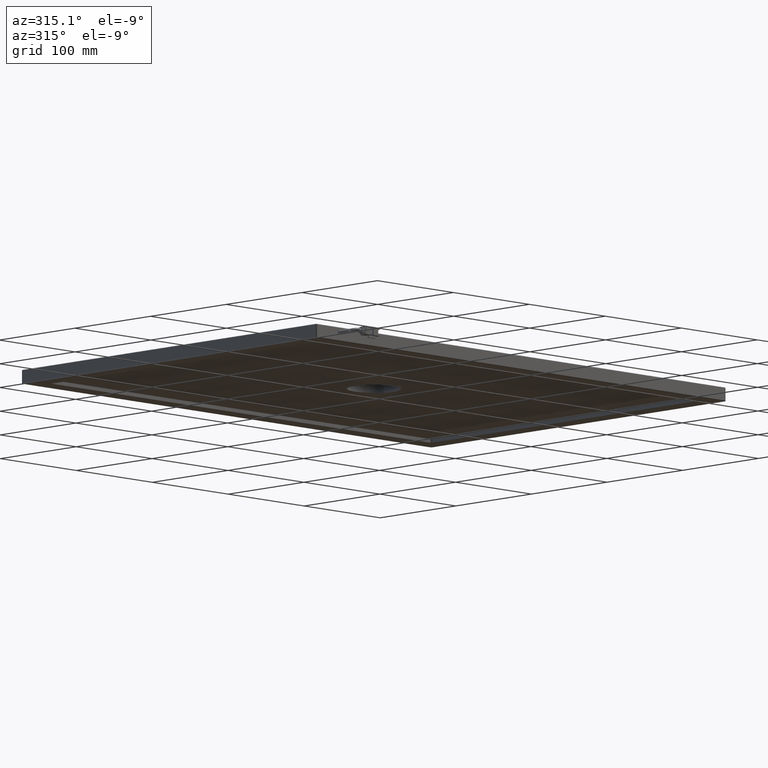
[diagram: clean part render]
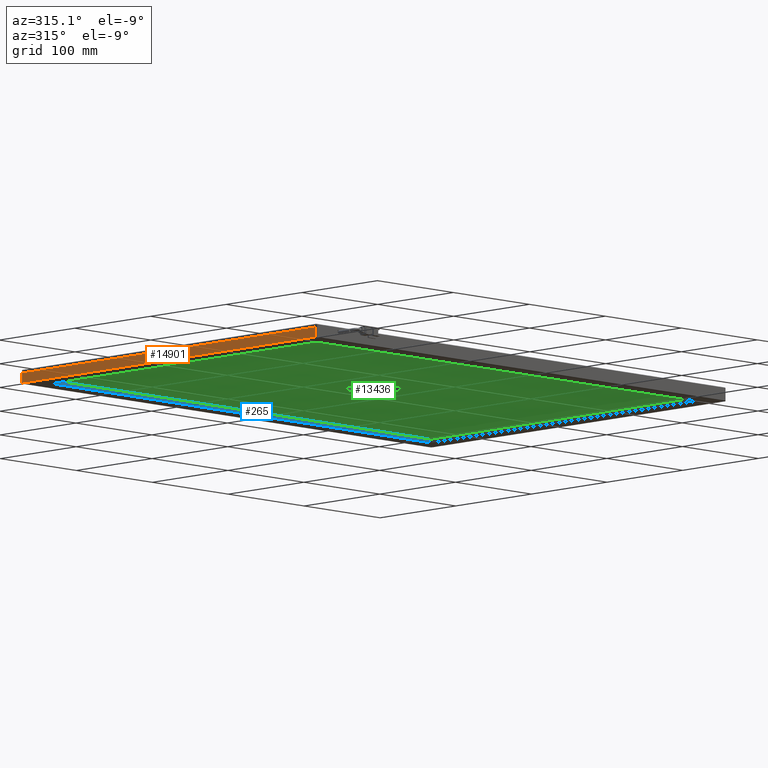
[diagram: same view with three faces highlighted in distinct colors, each labeled with its STEP entity id]
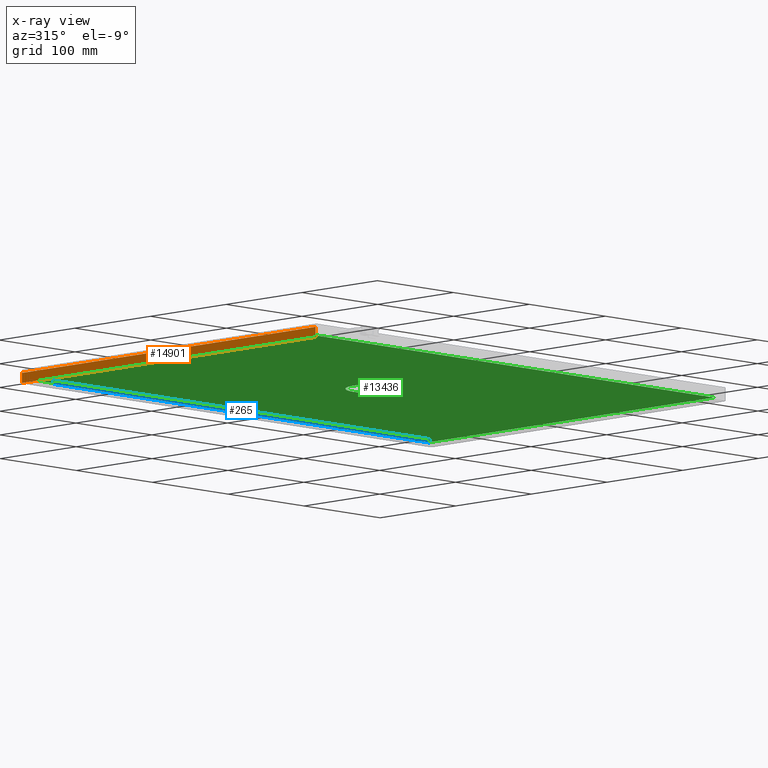
[diagram: x-ray of the same camera — body ghosted, the three highlighted faces saturated]
A machine part, auxiliary view with three faces highlighted in distinct colors.
The next image is the same camera in x-ray (body ghosted, the three faces saturated) — at least one of them is partly hidden behind the body in this view.
Their STEP definitions:

[orange] entity #14901 — the highlighted planar face has unit normal (1, 0, -0).
#1769 = VECTOR ( 'NONE', #4549, 1000.000000000000000 ) ;
#2458 = AXIS2_PLACEMENT_3D ( 'NONE', #19940, #33398, #33260 ) ;
#4338 = CARTESIAN_POINT ( 'NONE',  ( -256.0590440487346800, 215.7122774133083900, 10.00000000001909900 ) ) ;
#4549 = DIRECTION ( 'NONE',  ( 0.0000000000000000000, 0.0000000000000000000, 1.000000000000000000 ) ) ;
#6394 = DIRECTION ( 'NONE',  ( -0.0000000000000000000, -0.0000000000000000000, -1.000000000000000000 ) ) ;
#6777 = VERTEX_POINT ( 'NONE', #21624 ) ;
#9005 = CARTESIAN_POINT ( 'NONE',  ( -256.0590440487347900, 214.7122774133083300, 10.00000000001909900 ) ) ;
#11819 = VECTOR ( 'NONE', #6394, 1000.000000000000000 ) ;
#12496 = DIRECTION ( 'NONE',  ( -1.423362852083447600E-016, 1.000000000000000000, -1.423362852083534100E-016 ) ) ;
#14093 = ORIENTED_EDGE ( 'NONE', *, *, #31422, .T. ) ;
#14901 = ADVANCED_FACE ( 'NONE', ( #24140 ), #16755, .F. ) ;
#15310 = ORIENTED_EDGE ( 'NONE', *, *, #40515, .F. ) ;
#15327 = EDGE_CURVE ( 'NONE', #6777, #33827, #27261, .T. ) ;
#16755 = PLANE ( 'NONE',  #2458 ) ;
#16959 = VERTEX_POINT ( 'NONE', #30841 ) ;
#17988 = VECTOR ( 'NONE', #12496, 1000.000000000000000 ) ;
#19940 = CARTESIAN_POINT ( 'NONE',  ( -256.0590440487346800, -174.2877225866916100, 10.00000000001909900 ) ) ;
#20546 = CARTESIAN_POINT ( 'NONE',  ( -256.0590440487346800, -173.2877225866917300, 0.5000000000189271900 ) ) ;
#20967 = ORIENTED_EDGE ( 'NONE', *, *, #15327, .F. ) ;
#21624 = CARTESIAN_POINT ( 'NONE',  ( -256.0590440487346800, -173.2877225866917300, 10.00000000001909900 ) ) ;
#23187 = EDGE_CURVE ( 'NONE', #33827, #16959, #37532, .T. ) ;
#24140 = FACE_OUTER_BOUND ( 'NONE', #33282, .T. ) ;
#24501 = CARTESIAN_POINT ( 'NONE',  ( -256.0590440487347900, 214.7122774133083300, 10.00000000001909900 ) ) ;
#26357 = LINE ( 'NONE', #24501, #1769 ) ;
#27261 = LINE ( 'NONE', #29387, #11819 ) ;
#27971 = ORIENTED_EDGE ( 'NONE', *, *, #23187, .F. ) ;
#29387 = CARTESIAN_POINT ( 'NONE',  ( -256.0590440487346800, -173.2877225866917300, 10.00000000001909900 ) ) ;
#30841 = CARTESIAN_POINT ( 'NONE',  ( -256.0590440487347900, 214.7122774133082700, 0.5000000000189261900 ) ) ;
#31422 = EDGE_CURVE ( 'NONE', #6777, #40147, #36098, .T. ) ;
#33260 = DIRECTION ( 'NONE',  ( -2.846725704167067800E-016, 1.000000000000000000, 0.0000000000000000000 ) ) ;
#33282 = EDGE_LOOP ( 'NONE', ( #27971, #20967, #14093, #15310 ) ) ;
#33398 = DIRECTION ( 'NONE',  ( 1.000000000000000000, 2.846725704167067800E-016, -0.0000000000000000000 ) ) ;
#33827 = VERTEX_POINT ( 'NONE', #20546 ) ;
#35607 = VECTOR ( 'NONE', #37347, 1000.000000000000000 ) ;
#36098 = LINE ( 'NONE', #4338, #35607 ) ;
#37347 = DIRECTION ( 'NONE',  ( 0.0000000000000000000, 1.000000000000000000, 0.0000000000000000000 ) ) ;
#37532 = LINE ( 'NONE', #41564, #17988 ) ;
#40147 = VERTEX_POINT ( 'NONE', #9005 ) ;
#40515 = EDGE_CURVE ( 'NONE', #16959, #40147, #26357, .T. ) ;
#41564 = CARTESIAN_POINT ( 'NONE',  ( -256.0590440487346800, -174.2877225866916100, 0.5000000000189331900 ) ) ;

[blue] entity #265 — the highlighted planar face has unit normal (-0, -1, 0).
#265 = ADVANCED_FACE ( 'NONE', ( #19233 ), #27923, .T. ) ;
#3699 = CARTESIAN_POINT ( 'NONE',  ( 261.9409559512653200, 195.7122774133083900, 3.500000000019099800 ) ) ;
#3781 = VERTEX_POINT ( 'NONE', #15296 ) ;
#5105 = CARTESIAN_POINT ( 'NONE',  ( -234.0590440487346800, 195.7122774133084400, 10.00000000001909900 ) ) ;
#5847 = CARTESIAN_POINT ( 'NONE',  ( -236.0590440487346800, 195.7122774133084400, 10.00000000001909900 ) ) ;
#7917 = AXIS2_PLACEMENT_3D ( 'NONE', #5847, #25554, #15771 ) ;
#8193 = LINE ( 'NONE', #5105, #23059 ) ;
#9453 = EDGE_CURVE ( 'NONE', #40943, #19145, #15147, .T. ) ;
#10133 = CARTESIAN_POINT ( 'NONE',  ( 261.9409559512653200, 195.7122774133083900, 1.909930547050464600E-011 ) ) ;
#12603 = LINE ( 'NONE', #16631, #41945 ) ;
#13478 = DIRECTION ( 'NONE',  ( -1.000000000000000000, 1.110223024625156500E-016, -0.0000000000000000000 ) ) ;
#15147 = LINE ( 'NONE', #40546, #31593 ) ;
#15296 = CARTESIAN_POINT ( 'NONE',  ( -234.0590440487346800, 195.7122774133083900, 1.909930547050464600E-011 ) ) ;
#15771 = DIRECTION ( 'NONE',  ( 1.000000000000000000, -1.110223024625156500E-016, 0.0000000000000000000 ) ) ;
#16631 = CARTESIAN_POINT ( 'NONE',  ( -236.0590440487346800, 195.7122774133084400, 3.500000000019099800 ) ) ;
#19145 = VERTEX_POINT ( 'NONE', #3699 ) ;
#19233 = FACE_OUTER_BOUND ( 'NONE', #38077, .T. ) ;
#19464 = EDGE_CURVE ( 'NONE', #39790, #3781, #8193, .T. ) ;
#19959 = EDGE_CURVE ( 'NONE', #40943, #3781, #35271, .T. ) ;
#20356 = EDGE_CURVE ( 'NONE', #19145, #39790, #12603, .T. ) ;
#22858 = ORIENTED_EDGE ( 'NONE', *, *, #19959, .F. ) ;
#23059 = VECTOR ( 'NONE', #28125, 1000.000000000000000 ) ;
#25554 = DIRECTION ( 'NONE',  ( -1.110223024625156500E-016, -1.000000000000000000, 0.0000000000000000000 ) ) ;
#27923 = PLANE ( 'NONE',  #7917 ) ;
#28007 = ORIENTED_EDGE ( 'NONE', *, *, #9453, .T. ) ;
#28075 = DIRECTION ( 'NONE',  ( -1.000000000000000000, 0.0000000000000000000, -0.0000000000000000000 ) ) ;
#28125 = DIRECTION ( 'NONE',  ( -0.0000000000000000000, -0.0000000000000000000, -1.000000000000000000 ) ) ;
#29415 = ORIENTED_EDGE ( 'NONE', *, *, #19464, .T. ) ;
#31593 = VECTOR ( 'NONE', #34008, 1000.000000000000000 ) ;
#32714 = VECTOR ( 'NONE', #28075, 1000.000000000000000 ) ;
#33222 = ORIENTED_EDGE ( 'NONE', *, *, #20356, .T. ) ;
#34008 = DIRECTION ( 'NONE',  ( 0.0000000000000000000, 0.0000000000000000000, 1.000000000000000000 ) ) ;
#35271 = LINE ( 'NONE', #37960, #32714 ) ;
#37960 = CARTESIAN_POINT ( 'NONE',  ( -256.0590440487347900, 195.7122774133083900, 1.909930547050464600E-011 ) ) ;
#38077 = EDGE_LOOP ( 'NONE', ( #33222, #29415, #22858, #28007 ) ) ;
#39479 = CARTESIAN_POINT ( 'NONE',  ( -234.0590440487346800, 195.7122774133084400, 3.500000000019099800 ) ) ;
#39790 = VERTEX_POINT ( 'NONE', #39479 ) ;
#40546 = CARTESIAN_POINT ( 'NONE',  ( 261.9409559512653200, 195.7122774133083900, 10.00000000001909900 ) ) ;
#40943 = VERTEX_POINT ( 'NONE', #10133 ) ;
#41945 = VECTOR ( 'NONE', #13478, 1000.000000000000000 ) ;

[green] entity #13436 — the highlighted planar face has unit normal (0, 0, 1).
#248 = CARTESIAN_POINT ( 'NONE',  ( -248.0590440487346500, 207.7122774133084400, 3.500000000019100300 ) ) ;
#1437 = FACE_OUTER_BOUND ( 'NONE', #3815, .T. ) ;
#1604 = EDGE_CURVE ( 'NONE', #40955, #23299, #10238, .T. ) ;
#2829 = DIRECTION ( 'NONE',  ( -6.546126324440780700E-017, -1.000000000000000000, 0.0000000000000000000 ) ) ;
#3496 = CARTESIAN_POINT ( 'NONE',  ( 13.94095595126540300, 47.21227741330844200, 3.500000000019098900 ) ) ;
#3628 = VECTOR ( 'NONE', #16955, 1000.000000000000000 ) ;
#3815 = EDGE_LOOP ( 'NONE', ( #23624, #42224, #31127, #40984 ) ) ;
#4918 = VECTOR ( 'NONE', #36719, 1000.000000000000000 ) ;
#5182 = CARTESIAN_POINT ( 'NONE',  ( 13.94095595126540300, -5.787722586691565100, 3.500000000019098900 ) ) ;
#5573 = CIRCLE ( 'NONE', #7889, 26.50000000000000400 ) ;
#5652 = DIRECTION ( 'NONE',  ( 2.692764026828979900E-033, 1.240931981788380900E-018, 1.000000000000000000 ) ) ;
#6758 = CARTESIAN_POINT ( 'NONE',  ( 275.9409559512653200, 207.7122774133083900, 3.500000000019098500 ) ) ;
#7889 = AXIS2_PLACEMENT_3D ( 'NONE', #38989, #25500, #2829 ) ;
#8816 = DIRECTION ( 'NONE',  ( 2.692764026828979900E-033, 1.240931981788380900E-018, 1.000000000000000000 ) ) ;
#8974 = CARTESIAN_POINT ( 'NONE',  ( 275.9409559512654400, 207.7122774133083900, 3.500000000019098900 ) ) ;
#9241 = CARTESIAN_POINT ( 'NONE',  ( -248.0590440487346200, -166.2877225866915600, 3.500000000019100700 ) ) ;
#9248 = LINE ( 'NONE', #248, #3628 ) ;
#10238 = LINE ( 'NONE', #36768, #26723 ) ;
#10583 = FACE_BOUND ( 'NONE', #15117, .T. ) ;
#12132 = DIRECTION ( 'NONE',  ( -6.546126324440780700E-017, -1.000000000000000000, 0.0000000000000000000 ) ) ;
#13436 = ADVANCED_FACE ( 'NONE', ( #10583, #1437 ), #28956, .F. ) ;
#13795 = DIRECTION ( 'NONE',  ( -1.000000000000000000, 6.206990044168760600E-017, 2.615739502264469000E-033 ) ) ;
#14792 = CIRCLE ( 'NONE', #15045, 26.50000000000000400 ) ;
#15045 = AXIS2_PLACEMENT_3D ( 'NONE', #28530, #8816, #12132 ) ;
#15117 = EDGE_LOOP ( 'NONE', ( #27889, #26496 ) ) ;
#16043 = LINE ( 'NONE', #6758, #39684 ) ;
#16955 = DIRECTION ( 'NONE',  ( -8.635563760980394900E-017, 1.000000000000000000, -1.240931981788380900E-018 ) ) ;
#17139 = VERTEX_POINT ( 'NONE', #8974 ) ;
#18135 = VERTEX_POINT ( 'NONE', #5182 ) ;
#19148 = DIRECTION ( 'NONE',  ( 6.206990044168756900E-017, 1.000000000000000000, -1.240931981788380900E-018 ) ) ;
#19583 = EDGE_CURVE ( 'NONE', #18135, #39251, #5573, .T. ) ;
#21066 = CARTESIAN_POINT ( 'NONE',  ( -248.0590440487346500, 207.7122774133084400, 3.500000000019099400 ) ) ;
#22715 = EDGE_CURVE ( 'NONE', #23299, #41028, #9248, .T. ) ;
#23242 = CARTESIAN_POINT ( 'NONE',  ( 275.9409559512653200, 207.7122774133083900, 3.500000000019098500 ) ) ;
#23299 = VERTEX_POINT ( 'NONE', #26139 ) ;
#23384 = CARTESIAN_POINT ( 'NONE',  ( 275.9409559512654400, -166.2877225866916100, 3.500000000019100300 ) ) ;
#23624 = ORIENTED_EDGE ( 'NONE', *, *, #22715, .T. ) ;
#25500 = DIRECTION ( 'NONE',  ( 2.692764026828979900E-033, 1.240931981788380900E-018, 1.000000000000000000 ) ) ;
#26001 = LINE ( 'NONE', #23242, #4918 ) ;
#26139 = CARTESIAN_POINT ( 'NONE',  ( -248.0590440487346200, -166.2877225866915600, 3.500000000019100700 ) ) ;
#26496 = ORIENTED_EDGE ( 'NONE', *, *, #33270, .T. ) ;
#26723 = VECTOR ( 'NONE', #13795, 1000.000000000000000 ) ;
#27062 = EDGE_CURVE ( 'NONE', #41028, #17139, #26001, .T. ) ;
#27889 = ORIENTED_EDGE ( 'NONE', *, *, #19583, .T. ) ;
#28530 = CARTESIAN_POINT ( 'NONE',  ( 13.94095595126540500, 20.71227741330843800, 3.500000000019098900 ) ) ;
#28956 = PLANE ( 'NONE',  #30408 ) ;
#29330 = DIRECTION ( 'NONE',  ( 8.635563760980394900E-017, -1.000000000000000000, 1.240931981788380900E-018 ) ) ;
#30408 = AXIS2_PLACEMENT_3D ( 'NONE', #9241, #5652, #19148 ) ;
#31127 = ORIENTED_EDGE ( 'NONE', *, *, #37001, .T. ) ;
#33270 = EDGE_CURVE ( 'NONE', #39251, #18135, #14792, .T. ) ;
#36719 = DIRECTION ( 'NONE',  ( 1.000000000000000000, -6.206990044168760600E-017, -2.615739502264469000E-033 ) ) ;
#36768 = CARTESIAN_POINT ( 'NONE',  ( 275.9409559512654400, -166.2877225866916100, 3.500000000019101200 ) ) ;
#37001 = EDGE_CURVE ( 'NONE', #17139, #40955, #16043, .T. ) ;
#38989 = CARTESIAN_POINT ( 'NONE',  ( 13.94095595126540500, 20.71227741330843800, 3.500000000019098900 ) ) ;
#39251 = VERTEX_POINT ( 'NONE', #3496 ) ;
#39684 = VECTOR ( 'NONE', #29330, 1000.000000000000000 ) ;
#40955 = VERTEX_POINT ( 'NONE', #23384 ) ;
#40984 = ORIENTED_EDGE ( 'NONE', *, *, #1604, .T. ) ;
#41028 = VERTEX_POINT ( 'NONE', #21066 ) ;
#42224 = ORIENTED_EDGE ( 'NONE', *, *, #27062, .T. ) ;